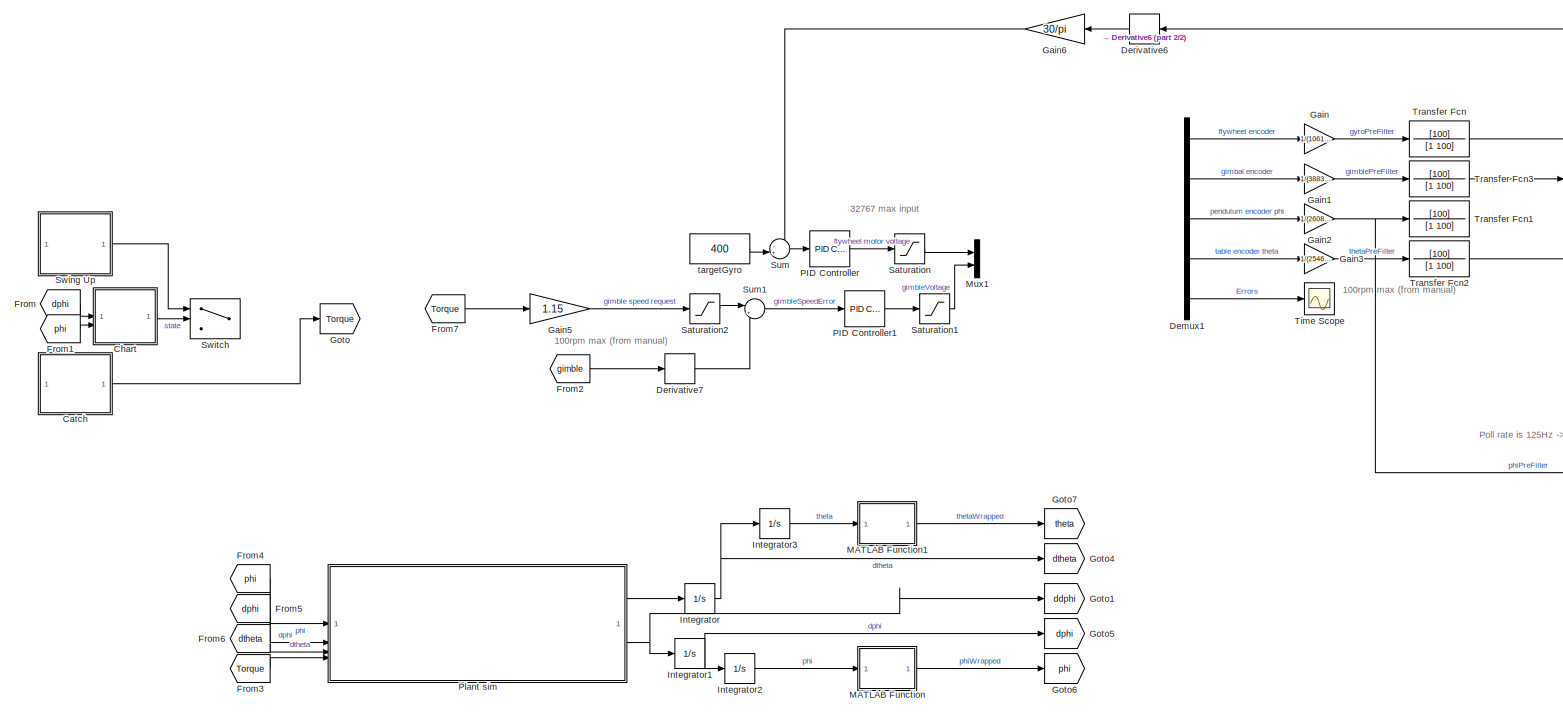
[diagram: root canvas - part 1/2, most of the canvas]
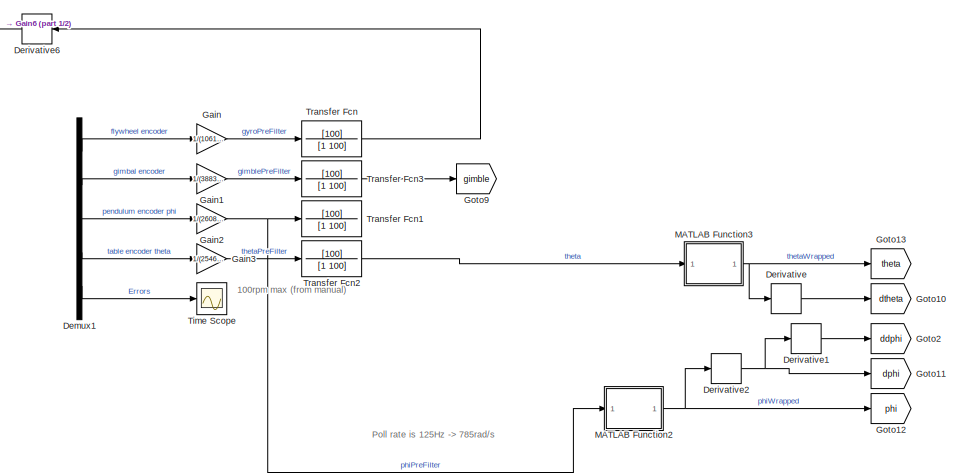
[diagram: root canvas - part 2/2, middle right region]
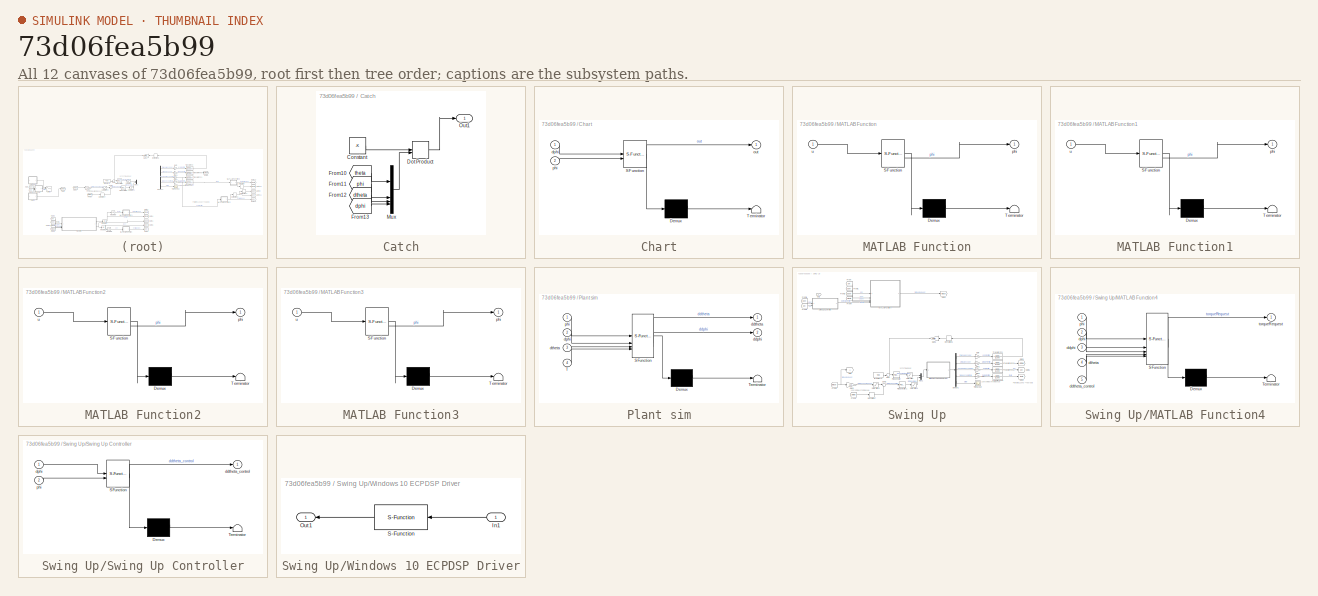
[diagram: thumbnail index - all 12 canvases of the model, root first then tree order]
MODEL slx_73d06fea5b99
KIND model
CONFIG AbsTol = auto
CONFIG EnableMultiTasking = off
CONFIG FixedStep = 0.02
CONFIG MaxStep = auto
CONFIG MinStep = auto
CONFIG RelTol = 1e-3
CONFIG SampleTimeConstraint = Unconstrained
CONFIG SolverName = FixedStepAuto
CONFIG StartTime = 0.0
CONFIG StopTime = 20
BLOCK [SubSystem] Catch
BLOCK [Constant] Catch/Constant
  Value = -K
BLOCK [DotProduct] Catch/Dot Product
  OutDataTypeStr = Inherit: Inherit via internal rule
BLOCK [From] Catch/From10
  GotoTag = theta
  TagVisibility = global
BLOCK [From] Catch/From11
  GotoTag = phi
  TagVisibility = global
BLOCK [From] Catch/From12
  GotoTag = dtheta
  TagVisibility = global
BLOCK [From] Catch/From13
  GotoTag = dphi
  TagVisibility = global
BLOCK [Mux] Catch/Mux
  DisplayOption = bar
BLOCK [Outport] Catch/Out1
BLOCK [SubSystem] Chart
  Commented = on
  ErrorFcn = Stateflow.Translate.translate
  PermitHierarchicalResolution = ExplicitOnly
  SFBlockType = Chart
  TreatAsAtomicUnit = on
BLOCK [Demux] Chart/ Demux 
  Outputs = 1
BLOCK [S-Function] Chart/ SFunction 
  EnableBusSupport = off
  FunctionName = sf_sfun
  PortCounts = [2 2]
  SFcnIsStateOwnerBlock = off
  SFunctionDeploymentMode = off
  Tag = Stateflow S-Function 3
BLOCK [Terminator] Chart/ Terminator 
BLOCK [Inport] Chart/dphi
BLOCK [Outport] Chart/out
BLOCK [Inport] Chart/phi
  Port = 2
BLOCK [Demux] Demux1
  Commented = on
  DisplayOption = none
  Outputs = 5
BLOCK [Derivative] Derivative
  Commented = on
BLOCK [Derivative] Derivative1
  Commented = on
BLOCK [Derivative] Derivative2
  Commented = on
BLOCK [Derivative] Derivative6
  Commented = on
BLOCK [Derivative] Derivative7
  Commented = on
  NameLocation = top
BLOCK [From] From
  Commented = on
  GotoTag = dphi
  TagVisibility = global
BLOCK [From] From1
  Commented = on
  GotoTag = phi
  TagVisibility = global
BLOCK [From] From2
  Commented = on
  GotoTag = gimble
BLOCK [From] From3
  GotoTag = Torque
BLOCK [From] From4
  GotoTag = phi
  TagVisibility = global
BLOCK [From] From5
  GotoTag = dphi
  TagVisibility = global
BLOCK [From] From6
  GotoTag = dtheta
  TagVisibility = global
BLOCK [From] From7
  Commented = on
  GotoTag = Torque
BLOCK [Gain] Gain
  Commented = on
  Gain = 1/(1061*32)
BLOCK [Gain] Gain1
  Commented = on
  Gain = 1/(3883*32)
BLOCK [Gain] Gain2
  Commented = on
  Gain = 1/(2608*32)
BLOCK [Gain] Gain3
  Commented = on
  Gain = 1/(2546*32)
BLOCK [Gain] Gain5
  Commented = on
  Gain = 1.15
BLOCK [Gain] Gain6
  Commented = on
  Gain = 30/pi
BLOCK [Goto] Goto
  GotoTag = Torque
BLOCK [Goto] Goto1
  GotoTag = ddphi
  TagVisibility = global
BLOCK [Goto] Goto10
  Commented = on
  GotoTag = dtheta
  TagVisibility = global
BLOCK [Goto] Goto11
  Commented = on
  GotoTag = dphi
  TagVisibility = global
BLOCK [Goto] Goto12
  Commented = on
  GotoTag = phi
  TagVisibility = global
BLOCK [Goto] Goto13
  Commented = on
  GotoTag = theta
  TagVisibility = global
BLOCK [Goto] Goto2
  Commented = on
  GotoTag = ddphi
  TagVisibility = global
BLOCK [Goto] Goto4
  GotoTag = dtheta
  TagVisibility = global
BLOCK [Goto] Goto5
  GotoTag = dphi
  TagVisibility = global
BLOCK [Goto] Goto6
  GotoTag = phi
  TagVisibility = global
BLOCK [Goto] Goto7
  GotoTag = theta
  TagVisibility = global
BLOCK [Goto] Goto9
  Commented = on
  GotoTag = gimble
BLOCK [Integrator] Integrator
BLOCK [Integrator] Integrator1
BLOCK [Integrator] Integrator2
  InitialCondition = 15*pi/180
BLOCK [Integrator] Integrator3
BLOCK [SubSystem] MATLAB Function
  ErrorFcn = Stateflow.Translate.translate
  PermitHierarchicalResolution = ExplicitOnly
  SFBlockType = MATLAB Function
  TreatAsAtomicUnit = on
BLOCK [Demux] MATLAB Function/ Demux 
  Outputs = 1
BLOCK [S-Function] MATLAB Function/ SFunction 
  EnableBusSupport = off
  FunctionName = sf_sfun
  PortCounts = [1 2]
  SFcnIsStateOwnerBlock = off
  SFunctionDeploymentMode = off
  Tag = Stateflow S-Function 1
BLOCK [Terminator] MATLAB Function/ Terminator 
BLOCK [Outport] MATLAB Function/phi
BLOCK [Inport] MATLAB Function/u
BLOCK [SubSystem] MATLAB Function1
  ErrorFcn = Stateflow.Translate.translate
  PermitHierarchicalResolution = ExplicitOnly
  SFBlockType = MATLAB Function
  TreatAsAtomicUnit = on
BLOCK [Demux] MATLAB Function1/ Demux 
  Outputs = 1
BLOCK [S-Function] MATLAB Function1/ SFunction 
  EnableBusSupport = off
  FunctionName = sf_sfun
  PortCounts = [1 2]
  SFcnIsStateOwnerBlock = off
  SFunctionDeploymentMode = off
  Tag = Stateflow S-Function 6
BLOCK [Terminator] MATLAB Function1/ Terminator 
BLOCK [Outport] MATLAB Function1/phi
BLOCK [Inport] MATLAB Function1/u
BLOCK [SubSystem] MATLAB Function2
  Commented = on
  ErrorFcn = Stateflow.Translate.translate
  PermitHierarchicalResolution = ExplicitOnly
  SFBlockType = MATLAB Function
  TreatAsAtomicUnit = on
BLOCK [Demux] MATLAB Function2/ Demux 
  Outputs = 1
BLOCK [S-Function] MATLAB Function2/ SFunction 
  EnableBusSupport = off
  FunctionName = sf_sfun
  PortCounts = [1 2]
  SFcnIsStateOwnerBlock = off
  SFunctionDeploymentMode = off
  Tag = Stateflow S-Function 7
BLOCK [Terminator] MATLAB Function2/ Terminator 
BLOCK [Outport] MATLAB Function2/phi
BLOCK [Inport] MATLAB Function2/u
BLOCK [SubSystem] MATLAB Function3
  Commented = on
  ErrorFcn = Stateflow.Translate.translate
  PermitHierarchicalResolution = ExplicitOnly
  SFBlockType = MATLAB Function
  TreatAsAtomicUnit = on
BLOCK [Demux] MATLAB Function3/ Demux 
  Outputs = 1
BLOCK [S-Function] MATLAB Function3/ SFunction 
  EnableBusSupport = off
  FunctionName = sf_sfun
  PortCounts = [1 2]
  SFcnIsStateOwnerBlock = off
  SFunctionDeploymentMode = off
  Tag = Stateflow S-Function 8
BLOCK [Terminator] MATLAB Function3/ Terminator 
BLOCK [Outport] MATLAB Function3/phi
BLOCK [Inport] MATLAB Function3/u
BLOCK [Mux] Mux1
  Commented = on
  DisplayOption = bar
  Inputs = 2
BLOCK [Reference] PID Controller  REF=slpidlib/PID Controller
  Commented = on
  LibrarySourceBlock = simulink/Continuous/PID Controller
  SourceBlock = slpidlib/PID Controller
  SourceType = PID 1dof
BLOCK [Reference] PID Controller1  REF=slpidlib/PID Controller
  Commented = on
  LibrarySourceBlock = simulink/Continuous/PID Controller
  SourceBlock = slpidlib/PID Controller
  SourceType = PID 1dof
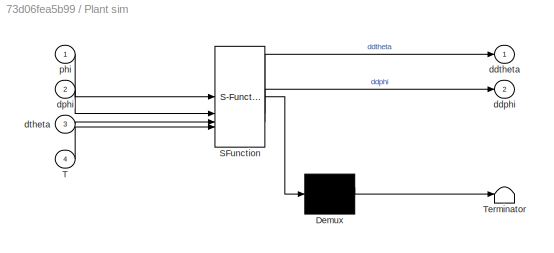
BLOCK [SubSystem] Plant sim
  ErrorFcn = Stateflow.Translate.translate
  PermitHierarchicalResolution = ExplicitOnly
  SFBlockType = MATLAB Function
  TreatAsAtomicUnit = on
BLOCK [Demux] Plant sim/ Demux 
  Outputs = 1
BLOCK [S-Function] Plant sim/ SFunction 
  EnableBusSupport = off
  FunctionName = sf_sfun
  PortCounts = [4 3]
  SFcnIsStateOwnerBlock = off
  SFunctionDeploymentMode = off
  Tag = Stateflow S-Function 2
BLOCK [Terminator] Plant sim/ Terminator 
BLOCK [Inport] Plant sim/T
  Port = 4
BLOCK [Outport] Plant sim/ddphi
  Port = 2
BLOCK [Outport] Plant sim/ddtheta
BLOCK [Inport] Plant sim/dphi
  Port = 2
BLOCK [Inport] Plant sim/dtheta
  Port = 3
BLOCK [Inport] Plant sim/phi
BLOCK [Saturate] Saturation
  Commented = on
  LowerLimit = -30000
  UpperLimit = 30000
BLOCK [Saturate] Saturation1
  Commented = on
  LowerLimit = -30000
  UpperLimit = 30000
BLOCK [Saturate] Saturation2
  Commented = on
  LowerLimit = -10
  UpperLimit = 10
BLOCK [Sum] Sum
  Commented = on
  Inputs = -+|
BLOCK [Sum] Sum1
  Commented = on
  Inputs = |+-
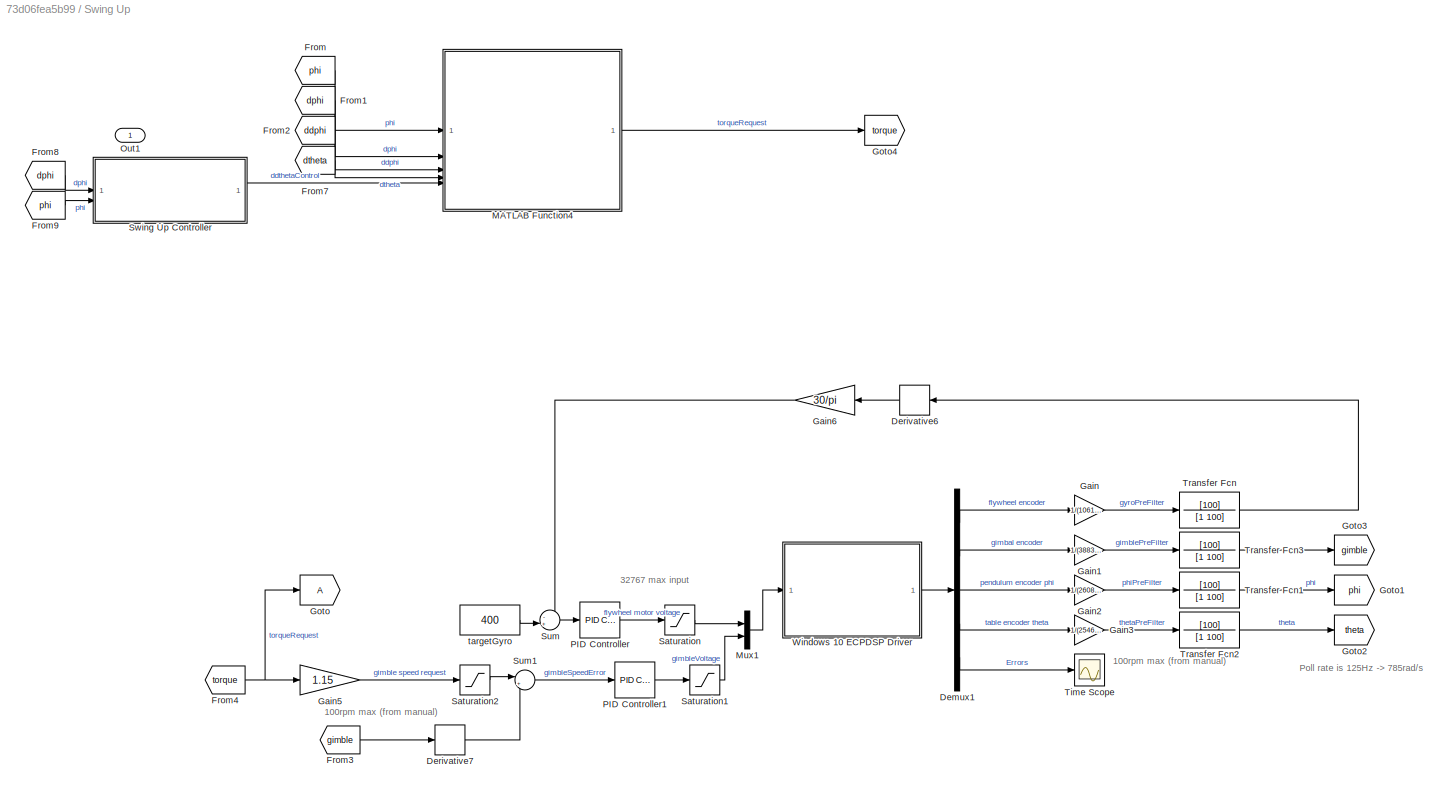
BLOCK [SubSystem] Swing Up
  Commented = on
BLOCK [Demux] Swing Up/Demux1
  Commented = on
  DisplayOption = none
  Outputs = 5
BLOCK [Derivative] Swing Up/Derivative6
  Commented = on
BLOCK [Derivative] Swing Up/Derivative7
  Commented = on
  NameLocation = top
BLOCK [From] Swing Up/From
  GotoTag = phi
  TagVisibility = global
BLOCK [From] Swing Up/From1
  GotoTag = dphi
  TagVisibility = global
BLOCK [From] Swing Up/From2
  GotoTag = ddphi
  TagVisibility = global
BLOCK [From] Swing Up/From3
  Commented = on
  GotoTag = gimble
BLOCK [From] Swing Up/From4
  Commented = on
  GotoTag = torque
BLOCK [From] Swing Up/From7
  GotoTag = dtheta
  TagVisibility = global
BLOCK [From] Swing Up/From8
  GotoTag = dphi
  TagVisibility = global
BLOCK [From] Swing Up/From9
  GotoTag = phi
  TagVisibility = global
BLOCK [Gain] Swing Up/Gain
  Commented = on
  Gain = 1/(1061*32)
BLOCK [Gain] Swing Up/Gain1
  Commented = on
  Gain = 1/(3883*32)
BLOCK [Gain] Swing Up/Gain2
  Commented = on
  Gain = 1/(2608*32)
BLOCK [Gain] Swing Up/Gain3
  Commented = on
  Gain = 1/(2546*32)
BLOCK [Gain] Swing Up/Gain5
  Commented = on
  Gain = 1.15
BLOCK [Gain] Swing Up/Gain6
  Commented = on
  Gain = 30/pi
BLOCK [Goto] Swing Up/Goto
  Commented = on
BLOCK [Goto] Swing Up/Goto1
  Commented = on
  GotoTag = phi
BLOCK [Goto] Swing Up/Goto2
  Commented = on
  GotoTag = theta
BLOCK [Goto] Swing Up/Goto3
  Commented = on
  GotoTag = gimble
BLOCK [Goto] Swing Up/Goto4
  GotoTag = torque
BLOCK [SubSystem] Swing Up/MATLAB Function4
  ErrorFcn = Stateflow.Translate.translate
  PermitHierarchicalResolution = ExplicitOnly
  SFBlockType = MATLAB Function
  TreatAsAtomicUnit = on
BLOCK [Demux] Swing Up/MATLAB Function4/ Demux 
  Outputs = 1
BLOCK [S-Function] Swing Up/MATLAB Function4/ SFunction 
  EnableBusSupport = off
  FunctionName = sf_sfun
  PortCounts = [5 2]
  SFcnIsStateOwnerBlock = off
  SFunctionDeploymentMode = off
  Tag = Stateflow S-Function 5
BLOCK [Terminator] Swing Up/MATLAB Function4/ Terminator 
BLOCK [Inport] Swing Up/MATLAB Function4/ddphi
  Port = 3
BLOCK [Inport] Swing Up/MATLAB Function4/ddtheta_control
  Port = 5
BLOCK [Inport] Swing Up/MATLAB Function4/dphi
  Port = 2
BLOCK [Inport] Swing Up/MATLAB Function4/dtheta
  Port = 4
BLOCK [Inport] Swing Up/MATLAB Function4/phi
BLOCK [Outport] Swing Up/MATLAB Function4/torqueRequest
BLOCK [Mux] Swing Up/Mux1
  Commented = on
  DisplayOption = bar
  Inputs = 2
BLOCK [Outport] Swing Up/Out1
BLOCK [Reference] Swing Up/PID Controller  REF=slpidlib/PID Controller
  Commented = on
  LibrarySourceBlock = simulink/Continuous/PID Controller
  SourceBlock = slpidlib/PID Controller
  SourceType = PID 1dof
BLOCK [Reference] Swing Up/PID Controller1  REF=slpidlib/PID Controller
  Commented = on
  LibrarySourceBlock = simulink/Continuous/PID Controller
  SourceBlock = slpidlib/PID Controller
  SourceType = PID 1dof
BLOCK [Saturate] Swing Up/Saturation
  Commented = on
  LowerLimit = -30000
  UpperLimit = 30000
BLOCK [Saturate] Swing Up/Saturation1
  Commented = on
  LowerLimit = -30000
  UpperLimit = 30000
BLOCK [Saturate] Swing Up/Saturation2
  Commented = on
  LowerLimit = -10
  UpperLimit = 10
BLOCK [Sum] Swing Up/Sum
  Commented = on
  Inputs = -+|
BLOCK [Sum] Swing Up/Sum1
  Commented = on
  Inputs = |+-
BLOCK [SubSystem] Swing Up/Swing Up Controller
  ErrorFcn = Stateflow.Translate.translate
  PermitHierarchicalResolution = ExplicitOnly
  SFBlockType = MATLAB Function
  TreatAsAtomicUnit = on
BLOCK [Demux] Swing Up/Swing Up Controller/ Demux 
  Outputs = 1
BLOCK [S-Function] Swing Up/Swing Up Controller/ SFunction 
  EnableBusSupport = off
  FunctionName = sf_sfun
  PortCounts = [2 2]
  SFcnIsStateOwnerBlock = off
  SFunctionDeploymentMode = off
  Tag = Stateflow S-Function 4
BLOCK [Terminator] Swing Up/Swing Up Controller/ Terminator 
BLOCK [Outport] Swing Up/Swing Up Controller/ddtheta_control
BLOCK [Inport] Swing Up/Swing Up Controller/dphi
BLOCK [Inport] Swing Up/Swing Up Controller/phi
  Port = 2
BLOCK [Scope] Swing Up/Time Scope
  ActiveDisplayYMaximum = 1
  ActiveDisplayYMinimum = -1
  Commented = on
  DataLoggingVariableName = ScopeData3
  DefaultConfigurationName = spbscopes.TimeScopeBlockCfg
  Floating = off
  FrameBasedProcessingString = Columns as channels (frame based)
  GraphicalSettings = {"Style":{"BackgroundColor":[0.12941176470588237,0.12941176470588237,0.12941176470588237],"AxesColor":[0.07058823529411765,0.07058823529411765,0.07058823529411765],"LabelsColor":[0.8509803921568627,0.8509803921568627,0.8509803921568627],"PreserveColors":false,"Visible":[true],"LineStyle":["-"],"LineWidth":[1.5],"BarWidth":[0.9],"LineColor":["auto"],"LineFaceAlpha":[1],"LineEdgeAlpha":[1],"Marker":...<+1885ch>
  LayoutDimensionsString = [1 1]
  MaximizeAxes = Auto
  MultipleDisplayCache = [{"MaxYLimMag":1,"MaxYLimReal":1,"MinYLimMag":0,"MinYLimReal":-1,"PlotAsMagnitudePhase":false,"ShowGrid":true,"ShowLegend":false,"Title":"","YLabel":"Amplitude"}]
  NumInputPorts = 1
  OpenAtSimulationStart = on
  ScopeFrameLocation = window
  ShowTimeAxisLabel = on
  TimeAxisLabels = All
  TimeUnits = Metric (based on Time Span)
  UserDataPersistent = on
  WasSavedAsWebScope = on
  WindowPosition = [687.000000,419.000000,560.000000,420.000000,]
  YLabel = Amplitude
BLOCK [TransferFcn] Swing Up/Transfer Fcn
  Commented = on
  Denominator = [1 100]
  Numerator = [100]
BLOCK [TransferFcn] Swing Up/Transfer Fcn1
  Commented = on
  Denominator = [1 100]
  Numerator = [100]
BLOCK [TransferFcn] Swing Up/Transfer Fcn2
  Commented = on
  Denominator = [1 100]
  Numerator = [100]
BLOCK [TransferFcn] Swing Up/Transfer Fcn3
  Commented = on
  Denominator = [1 100]
  Numerator = [100]
BLOCK [SubSystem] Swing Up/Windows 10 ECPDSP Driver
  Commented = on
BLOCK [Inport] Swing Up/Windows 10 ECPDSP Driver/In1
BLOCK [Outport] Swing Up/Windows 10 ECPDSP Driver/Out1
BLOCK [S-Function] Swing Up/Windows 10 ECPDSP Driver/S-Function
  EnableBusSupport = off
  FunctionName = ECPDSPDriver
  Parameters = BaseAddr,STime,TimeOutPer,HWAccess
  SFcnIsStateOwnerBlock = off
  SFunctionDeploymentMode = off
BLOCK [Constant] Swing Up/targetGyro
  Commented = on
  Value = 400
BLOCK [Switch] Switch
  Commented = on
  Criteria = u2 > Threshold
  InputSameDT = off
  SaturateOnIntegerOverflow = off
BLOCK [Scope] Time Scope
  ActiveDisplayYMaximum = 1
  ActiveDisplayYMinimum = -1
  Commented = on
  DataLoggingVariableName = ScopeData1
  DefaultConfigurationName = spbscopes.TimeScopeBlockCfg
  Floating = off
  FrameBasedProcessingString = Columns as channels (frame based)
  GraphicalSettings = {"Style":{"BackgroundColor":[0.12941176470588237,0.12941176470588237,0.12941176470588237],"AxesColor":[0.07058823529411765,0.07058823529411765,0.07058823529411765],"LabelsColor":[0.8509803921568627,0.8509803921568627,0.8509803921568627],"PreserveColors":false,"Visible":[true],"LineStyle":["-"],"LineWidth":[1.5],"BarWidth":[0.9],"LineColor":["auto"],"LineFaceAlpha":[1],"LineEdgeAlpha":[1],"Marker":...<+1885ch>
  LayoutDimensionsString = [1 1]
  MaximizeAxes = Auto
  MultipleDisplayCache = [{"MaxYLimMag":1,"MaxYLimReal":1,"MinYLimMag":0,"MinYLimReal":-1,"PlotAsMagnitudePhase":false,"ShowGrid":true,"ShowLegend":false,"Title":"","YLabel":"Amplitude"}]
  NumInputPorts = 1
  OpenAtSimulationStart = on
  ScopeFrameLocation = window
  ShowTimeAxisLabel = on
  TimeAxisLabels = All
  TimeUnits = Metric (based on Time Span)
  UserDataPersistent = on
  WasSavedAsWebScope = on
  WindowPosition = [687.000000,419.000000,560.000000,420.000000,]
  YLabel = Amplitude
BLOCK [TransferFcn] Transfer Fcn
  Commented = on
  Denominator = [1 100]
  Numerator = [100]
BLOCK [TransferFcn] Transfer Fcn1
  Commented = on
  Denominator = [1 100]
  Numerator = [100]
BLOCK [TransferFcn] Transfer Fcn2
  Commented = on
  Denominator = [1 100]
  Numerator = [100]
BLOCK [TransferFcn] Transfer Fcn3
  Commented = on
  Denominator = [1 100]
  Numerator = [100]
BLOCK [Constant] targetGyro
  Commented = on
  Value = 400
ANNOTATION (root): 100rpm max (from manual)
ANNOTATION (root): 32767 max input
ANNOTATION (root): Poll rate is 125Hz -> 785rad/s
ANNOTATION Swing Up: 100rpm max (from manual)
ANNOTATION Swing Up: 32767 max input
ANNOTATION Swing Up: Poll rate is 125Hz -> 785rad/s
LINE Catch/Constant:1 -> Catch/Dot Product:1
LINE Catch/Dot Product:1 -> Catch/Out1:1
LINE Catch/From10:1 -> Catch/Mux:1
LINE Catch/From11:1 -> Catch/Mux:2
LINE Catch/From12:1 -> Catch/Mux:3
LINE Catch/From13:1 -> Catch/Mux:4
LINE Catch/Mux:1 -> Catch/Dot Product:2
LINE Catch:1 -> Goto:1
LINE Chart:1 -> Switch:2
LINE Demux1:1 -> Gain:1
LINE Demux1:2 -> Gain1:1
LINE Demux1:3 -> Gain2:1
LINE Demux1:4 -> Gain3:1
LINE Demux1:5 -> Time Scope:1
LINE Derivative1:1 -> Goto2:1
NET Derivative2:1 -> Derivative1:1, Goto11:1
LINE Derivative6:1 -> Gain6:1
LINE Derivative7:1 -> Sum1:2
LINE Derivative:1 -> Goto10:1
LINE From1:1 -> Chart:2
LINE From2:1 -> Derivative7:1
LINE From3:1 -> Plant sim:4
LINE From4:1 -> Plant sim:1
LINE From5:1 -> Plant sim:2
LINE From6:1 -> Plant sim:3
LINE From7:1 -> Gain5:1
LINE From:1 -> Chart:1
LINE Gain1:1 -> Transfer Fcn3:1
NET Gain2:1 -> MATLAB Function2:1, Transfer Fcn1:1
LINE Gain3:1 -> Transfer Fcn2:1
LINE Gain5:1 -> Saturation2:1
LINE Gain6:1 -> Sum:1
LINE Gain:1 -> Transfer Fcn:1
NET Integrator1:1 -> Goto5:1, Integrator2:1
LINE Integrator2:1 -> MATLAB Function:1
LINE Integrator3:1 -> MATLAB Function1:1
NET Integrator:1 -> Goto4:1, Integrator3:1
LINE MATLAB Function1:1 -> Goto7:1
NET MATLAB Function2:1 -> Derivative2:1, Goto12:1
NET MATLAB Function3:1 -> Derivative:1, Goto13:1
LINE MATLAB Function:1 -> Goto6:1
LINE PID Controller1:1 -> Saturation1:1
LINE PID Controller:1 -> Saturation:1
LINE Plant sim:1 -> Integrator:1
NET Plant sim:2 -> Goto1:1, Integrator1:1
LINE Saturation1:1 -> Mux1:2
LINE Saturation2:1 -> Sum1:1
LINE Saturation:1 -> Mux1:1
LINE Sum1:1 -> PID Controller1:1
LINE Sum:1 -> PID Controller:1
LINE Swing Up/Demux1:1 -> Swing Up/Gain:1
LINE Swing Up/Demux1:2 -> Swing Up/Gain1:1
LINE Swing Up/Demux1:3 -> Swing Up/Gain2:1
LINE Swing Up/Demux1:4 -> Swing Up/Gain3:1
LINE Swing Up/Demux1:5 -> Swing Up/Time Scope:1
LINE Swing Up/Derivative6:1 -> Swing Up/Gain6:1
LINE Swing Up/Derivative7:1 -> Swing Up/Sum1:2
LINE Swing Up/From1:1 -> Swing Up/MATLAB Function4:2
LINE Swing Up/From2:1 -> Swing Up/MATLAB Function4:3
LINE Swing Up/From3:1 -> Swing Up/Derivative7:1
NET Swing Up/From4:1 -> Swing Up/Gain5:1, Swing Up/Goto:1
LINE Swing Up/From7:1 -> Swing Up/MATLAB Function4:4
LINE Swing Up/From8:1 -> Swing Up/Swing Up Controller:1
LINE Swing Up/From9:1 -> Swing Up/Swing Up Controller:2
LINE Swing Up/From:1 -> Swing Up/MATLAB Function4:1
LINE Swing Up/Gain1:1 -> Swing Up/Transfer Fcn3:1
LINE Swing Up/Gain2:1 -> Swing Up/Transfer Fcn1:1
LINE Swing Up/Gain3:1 -> Swing Up/Transfer Fcn2:1
LINE Swing Up/Gain5:1 -> Swing Up/Saturation2:1
LINE Swing Up/Gain6:1 -> Swing Up/Sum:1
LINE Swing Up/Gain:1 -> Swing Up/Transfer Fcn:1
LINE Swing Up/MATLAB Function4:1 -> Swing Up/Goto4:1
LINE Swing Up/Mux1:1 -> Swing Up/Windows 10 ECPDSP Driver:1
LINE Swing Up/PID Controller1:1 -> Swing Up/Saturation1:1
LINE Swing Up/PID Controller:1 -> Swing Up/Saturation:1
LINE Swing Up/Saturation1:1 -> Swing Up/Mux1:2
LINE Swing Up/Saturation2:1 -> Swing Up/Sum1:1
LINE Swing Up/Saturation:1 -> Swing Up/Mux1:1
LINE Swing Up/Sum1:1 -> Swing Up/PID Controller1:1
LINE Swing Up/Sum:1 -> Swing Up/PID Controller:1
LINE Swing Up/Swing Up Controller:1 -> Swing Up/MATLAB Function4:5
LINE Swing Up/Transfer Fcn1:1 -> Swing Up/Goto1:1
LINE Swing Up/Transfer Fcn2:1 -> Swing Up/Goto2:1
LINE Swing Up/Transfer Fcn3:1 -> Swing Up/Goto3:1
LINE Swing Up/Transfer Fcn:1 -> Swing Up/Derivative6:1
LINE Swing Up/Windows 10 ECPDSP Driver/In1:1 -> Swing Up/Windows 10 ECPDSP Driver/S-Function:1
LINE Swing Up/Windows 10 ECPDSP Driver/S-Function:1 -> Swing Up/Windows 10 ECPDSP Driver/Out1:1
LINE Swing Up/Windows 10 ECPDSP Driver:1 -> Swing Up/Demux1:1
LINE Swing Up/targetGyro:1 -> Swing Up/Sum:2
LINE Swing Up:1 -> Switch:1
LINE Transfer Fcn2:1 -> MATLAB Function3:1
LINE Transfer Fcn3:1 -> Goto9:1
LINE Transfer Fcn:1 -> Derivative6:1
LINE targetGyro:1 -> Sum:2
note: NET lines group one-source signal fan-out (src -> all destinations, sorted); 1:1 wires keep LINE
CHART MATLAB Function states=1 transitions=1
  STATE_LABEL 'eML_blk_kernel()'
  STATE_LABEL 'SCRIPT:\nfunction phi = fcn(u)\n\nphi = wrapToPi(u);\n'
CHART Plant sim states=1 transitions=1
  STATE_LABEL 'eML_blk_kernel()'
  STATE_LABEL 'SCRIPT:\nfunction [ddtheta, ddphi] = fcn(phi, dphi, dtheta, T)\n\nR = 0.3700\nl = 0.2698\nr = 0; %reduced into J1_bar\nM = 0; %reduced into J1_bar\ng = 9.81;\nc1 = 1; %friction of base\nc2 = 0; %friction of pivot\n\nJ =  0.1530 % J1_bar J - inertia of the table\nIyy = 5.5625e-05 %Jy \nI = 0.0131%Jz_bar%  I - inertia of the pendulum\nm =     0.1580\n\n\nddphi = -(c2*dphi - 0.5000*Iyy*dtheta^2*sin(2*phi) + g*l*m*sin...<+523ch>'
CHART Chart states=2 transitions=3
  STATE_LABEL 'swingUp\nout = 1'
  STATE_LABEL 'catch\nout = 0\n'
CHART Swing Up/Swing Up Controller states=1 transitions=1
  STATE_LABEL 'eML_blk_kernel()'
  STATE_LABEL 'SCRIPT:\nfunction ddtheta_control = fcn(dphi, phi)\nR = 0.3700;\nl = 0.2698;\nr = 0; %reduced into J1_bar\nM = 0; %reduced into J1_bar\ng = 9.81;\nc1 = 1; %friction of base\nc2 = 0; %friction of pivot\n\nJ =  0.1530 % J1_bar J - inertia of the table\nIyy = 5.5625e-05 %Jy \nI = 0.0131%Jz_bar%  I - inertia of the pendulum\nm =     0.1580\n\n\nk = 1\n% E = 0.5*I*dphi^2+m*g*l*(cos(phi)-1);\nE = 0.5*I*dphi^2 + m*g*l*(co...<+97ch>'
CHART Swing Up/MATLAB Function4 states=1 transitions=1
  STATE_LABEL 'eML_blk_kernel()'
  STATE_LABEL 'SCRIPT:\nfunction torqueRequest = fcn(phi, dphi, ddphi,dtheta, ddtheta_control)\nR = 0.3700\nl = 0.2698\nr = 0; %reduced into J1_bar\nM = 0; %reduced into J1_bar\ng = 9.81;\nc1 = 1; %friction of base\nc2 = 0; %friction of pivot\n\nJ =  0.1530 % J1_bar J - inertia of the table\nIyy = 5.5625e-05 %Jy \nI = 0.0131%Jz_bar%  I - inertia of the pendulum\nm =     0.1580\n\n\ntorqueRequest = Iyy*ddtheta_control + J*ddthet...<+245ch>'
CHART MATLAB Function1 states=1 transitions=1
  STATE_LABEL 'eML_blk_kernel()'
  STATE_LABEL 'SCRIPT:\nfunction phi = fcn(u)\n\nphi = wrapToPi(u);\n'
CHART MATLAB Function2 states=1 transitions=1
  STATE_LABEL 'eML_blk_kernel()'
  STATE_LABEL 'SCRIPT:\nfunction phi = fcn(u)\n\nphi = wrapToPi(u);\n'
CHART MATLAB Function3 states=1 transitions=1
  STATE_LABEL 'eML_blk_kernel()'
  STATE_LABEL 'SCRIPT:\nfunction phi = fcn(u)\n\nphi = wrapToPi(u);\n'
CHART  states=0 transitions=0
CHART  states=0 transitions=0
CHART  states=0 transitions=0
CHART  states=0 transitions=0
CHART  states=0 transitions=0
CHART  states=0 transitions=0
CHART  states=0 transitions=0
CHART  states=0 transitions=0
